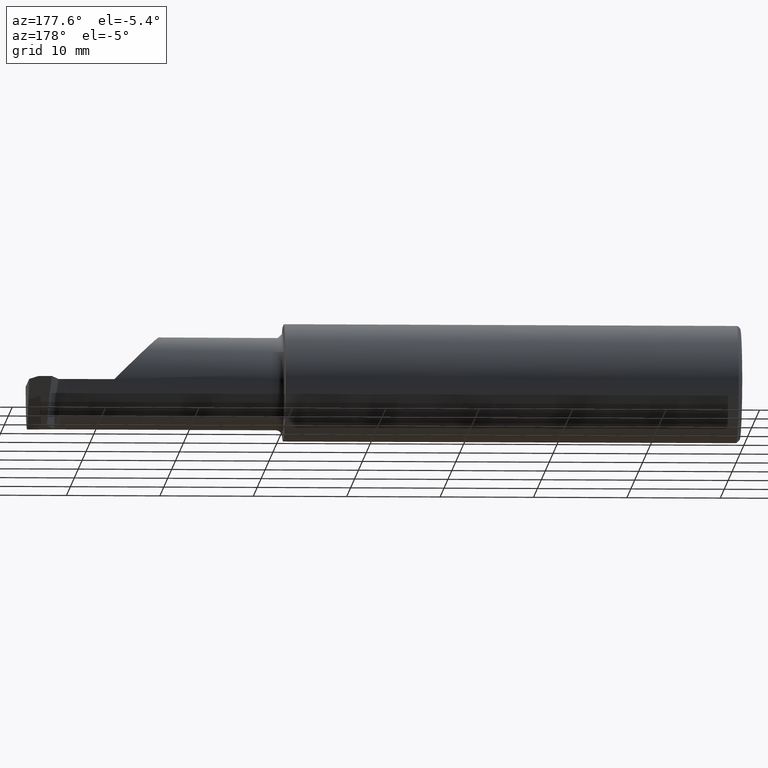
[diagram: clean part render]
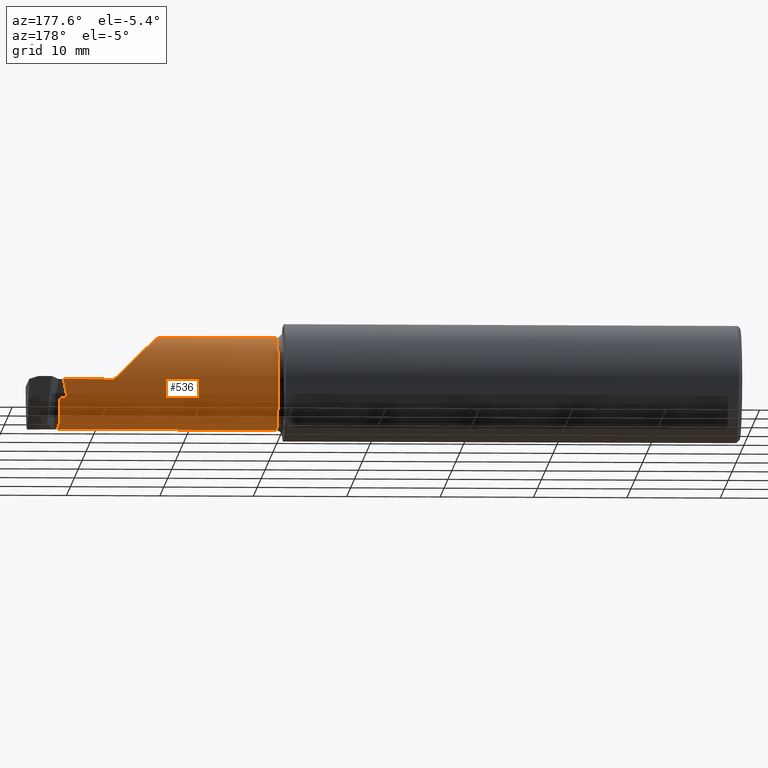
[diagram: same view with one face highlighted and labeled with its STEP entity id]
A machine part, auxiliary view. The second image highlights one B-rep face of the part: STEP entity #536.
In plain terms, the highlighted cylindrical surface (partial cylindrical patch) has radius 4.953 mm, axis along (-1, -0, -0).
Its self-contained STEP definition (entity closure, byte-faithful):
#16 = CARTESIAN_POINT ( 'NONE',  ( 1.925000000000000266, -0.08485000000000002263, 0.1950000000000000067 ) ) ;
#23 = CARTESIAN_POINT ( 'NONE',  ( 2.875000000000000444, -0.08485000000000002263, 0.000000000000000000 ) ) ;
#24 = VERTEX_POINT ( 'NONE', #963 ) ;
#30 = ORIENTED_EDGE ( 'NONE', *, *, #919, .T. ) ;
#34 = EDGE_CURVE ( 'NONE', #186, #483, #372, .T. ) ;
#36 = CARTESIAN_POINT ( 'NONE',  ( 2.869008559366363453, -0.03642100170329330006, -0.1888905294713771332 ) ) ;
#37 = DIRECTION ( 'NONE',  ( 0.000000000000000000, 0.000000000000000000, 1.000000000000000000 ) ) ;
#43 = ORIENTED_EDGE ( 'NONE', *, *, #380, .T. ) ;
#55 = DIRECTION ( 'NONE',  ( -2.801895378117193014E-15, 3.589928453212653217E-15, -1.000000000000000000 ) ) ;
#63 = VERTEX_POINT ( 'NONE', #364 ) ;
#67 = AXIS2_PLACEMENT_3D ( 'NONE', #282, #203, #746 ) ;
#99 = LINE ( 'NONE', #254, #861 ) ;
#126 = CARTESIAN_POINT ( 'NONE',  ( 2.640000000000000124, 0.1101499999999999563, -6.123031769111885058E-17 ) ) ;
#130 = CARTESIAN_POINT ( 'NONE',  ( 2.869008559366364786, -0.08485000000000002263, 0.000000000000000000 ) ) ;
#135 = EDGE_CURVE ( 'NONE', #192, #695, #153, .T. ) ;
#137 = FACE_OUTER_BOUND ( 'NONE', #421, .T. ) ;
#139 = VECTOR ( 'NONE', #869, 39.37007874015748143 ) ;
#142 = DIRECTION ( 'NONE',  ( -1.000000000000000000, -3.266703515499297450E-15, 3.893105650536435535E-15 ) ) ;
#143 = VECTOR ( 'NONE', #890, 39.37007874015748143 ) ;
#146 =( BOUNDED_CURVE ( )  B_SPLINE_CURVE ( 3, ( #307, #911, #229, #532 ),
 .UNSPECIFIED., .F., .F. ) 
 B_SPLINE_CURVE_WITH_KNOTS ( ( 4, 4 ),
 ( 4.719312112611640408, 6.283185307179586232 ),
 .UNSPECIFIED. ) 
 CURVE ( )  GEOMETRIC_REPRESENTATION_ITEM ( )  RATIONAL_B_SPLINE_CURVE ( ( 1.000000000000000000, 0.8063668244950932262, 0.8063668244950932262, 1.000000000000000000 ) ) 
 REPRESENTATION_ITEM ( '' )  );
#153 =( BOUNDED_CURVE ( )  B_SPLINE_CURVE ( 3, ( #240, #849, #620, #396 ),
 .UNSPECIFIED., .F., .F. ) 
 B_SPLINE_CURVE_WITH_KNOTS ( ( 4, 4 ),
 ( 1.156804228221840036, 1.570796326794896780 ),
 .UNSPECIFIED. ) 
 CURVE ( )  GEOMETRIC_REPRESENTATION_ITEM ( )  RATIONAL_B_SPLINE_CURVE ( ( 1.000000000000000000, 0.9857684695413670983, 0.9857684695413670983, 1.000000000000000000 ) ) 
 REPRESENTATION_ITEM ( '' )  );
#173 = CARTESIAN_POINT ( 'NONE',  ( 2.875000000000000444, -0.08485000000000002263, 0.000000000000000000 ) ) ;
#180 = DIRECTION ( 'NONE',  ( -1.000000000000000000, -0.000000000000000000, -0.000000000000000000 ) ) ;
#186 = VERTEX_POINT ( 'NONE', #537 ) ;
#192 = VERTEX_POINT ( 'NONE', #394 ) ;
#203 = DIRECTION ( 'NONE',  ( 1.000000000000000000, 0.000000000000000000, 0.000000000000000000 ) ) ;
#229 = CARTESIAN_POINT ( 'NONE',  ( 2.446349999999999802, 0.02875230614401349735, 0.1950000000000000344 ) ) ;
#234 = ORIENTED_EDGE ( 'NONE', *, *, #34, .T. ) ;
#240 = CARTESIAN_POINT ( 'NONE',  ( 2.839527195321073005, 0.09367683510634318422, -0.07844213884713081841 ) ) ;
#254 = CARTESIAN_POINT ( 'NONE',  ( 1.925000000000000266, 0.09276125059353615421, -0.08049374921445828779 ) ) ;
#262 = ORIENTED_EDGE ( 'NONE', *, *, #739, .F. ) ;
#265 = DIRECTION ( 'NONE',  ( 1.000000000000000000, 0.000000000000000000, 0.000000000000000000 ) ) ;
#270 = EDGE_CURVE ( 'NONE', #953, #63, #792, .T. ) ;
#272 = CARTESIAN_POINT ( 'NONE',  ( 1.925000000000000266, -0.08484999999999999487, -0.1950000000000000067 ) ) ;
#278 = CARTESIAN_POINT ( 'NONE',  ( 2.875000000000000444, -0.08485000000000003650, -0.1950000000000000067 ) ) ;
#282 = CARTESIAN_POINT ( 'NONE',  ( 1.950000000000000178, -0.08485000000000002263, 0.000000000000000000 ) ) ;
#300 = VERTEX_POINT ( 'NONE', #36 ) ;
#302 = CARTESIAN_POINT ( 'NONE',  ( 2.640000000000000124, -0.08485000000000002263, 0.000000000000000000 ) ) ;
#304 = CIRCLE ( 'NONE', #936, 0.1950000000000000067 ) ;
#307 = CARTESIAN_POINT ( 'NONE',  ( 2.640000000000000124, 0.1101453268670816443, 0.001349999999999153743 ) ) ;
#328 = ORIENTED_EDGE ( 'NONE', *, *, #270, .T. ) ;
#336 = VECTOR ( 'NONE', #265, 39.37007874015748143 ) ;
#345 = EDGE_CURVE ( 'NONE', #483, #695, #406, .T. ) ;
#354 = CARTESIAN_POINT ( 'NONE',  ( 1.950000000000000178, -0.08485000000000002263, 0.1950000000000000067 ) ) ;
#362 = CARTESIAN_POINT ( 'NONE',  ( 2.875000000000000444, 0.09276125059353650115, -0.08049374921445756614 ) ) ;
#364 = CARTESIAN_POINT ( 'NONE',  ( 1.950000000000000178, -0.08484999999999999487, -0.1950000000000000067 ) ) ;
#367 = CARTESIAN_POINT ( 'NONE',  ( 1.925000000000000266, -0.03642100170329384129, -0.1888905294713782990 ) ) ;
#372 = CIRCLE ( 'NONE', #699, 0.1950000000000000067 ) ;
#380 = EDGE_CURVE ( 'NONE', #877, #454, #99, .T. ) ;
#394 = CARTESIAN_POINT ( 'NONE',  ( 2.839527195321073005, 0.09367683510634318422, -0.07844213884713081841 ) ) ;
#396 = CARTESIAN_POINT ( 'NONE',  ( 2.856000360214729472, 0.1101499999999999563, 0.000000000000000000 ) ) ;
#404 = DIRECTION ( 'NONE',  ( -1.000000000000000000, -0.000000000000000000, -0.000000000000000000 ) ) ;
#405 = VERTEX_POINT ( 'NONE', #667 ) ;
#406 = LINE ( 'NONE', #708, #336 ) ;
#421 = EDGE_LOOP ( 'NONE', ( #698, #328, #786, #262, #431, #234, #470, #770, #621, #949, #43, #636, #30 ) ) ;
#431 = ORIENTED_EDGE ( 'NONE', *, *, #562, .F. ) ;
#439 = CYLINDRICAL_SURFACE ( 'NONE', #954, 0.1950000000000000067 ) ;
#447 = DIRECTION ( 'NONE',  ( 0.000000000000000000, 0.000000000000000000, 1.000000000000000000 ) ) ;
#449 = AXIS2_PLACEMENT_3D ( 'NONE', #130, #142, #55 ) ;
#454 = VERTEX_POINT ( 'NONE', #897 ) ;
#470 = ORIENTED_EDGE ( 'NONE', *, *, #345, .T. ) ;
#475 = AXIS2_PLACEMENT_3D ( 'NONE', #173, #560, #37 ) ;
#483 = VERTEX_POINT ( 'NONE', #126 ) ;
#512 = CIRCLE ( 'NONE', #449, 0.1950000000000000067 ) ;
#521 = DIRECTION ( 'NONE',  ( 1.000000000000000000, 0.000000000000000000, 0.000000000000000000 ) ) ;
#523 = EDGE_CURVE ( 'NONE', #454, #300, #512, .T. ) ;
#532 = CARTESIAN_POINT ( 'NONE',  ( 2.446350000000000691, -0.08485000000000002263, 0.1950000000000000067 ) ) ;
#536 = ADVANCED_FACE ( 'NONE', ( #137 ), #439, .T. ) ;
#537 = CARTESIAN_POINT ( 'NONE',  ( 2.640000000000000124, 0.1101453268670816443, 0.001349999999999153743 ) ) ;
#555 = CIRCLE ( 'NONE', #67, 0.1950000000000000067 ) ;
#558 = DIRECTION ( 'NONE',  ( -1.000000000000000000, -0.000000000000000000, -0.000000000000000000 ) ) ;
#560 = DIRECTION ( 'NONE',  ( -1.000000000000000000, -0.000000000000000000, -0.000000000000000000 ) ) ;
#562 = EDGE_CURVE ( 'NONE', #186, #867, #146, .T. ) ;
#563 = CARTESIAN_POINT ( 'NONE',  ( 2.446350000000000691, -0.08485000000000002263, 0.1950000000000000067 ) ) ;
#584 = CARTESIAN_POINT ( 'NONE',  ( 1.925000000000000044, 0.09367683510634167154, -0.07844213884713420459 ) ) ;
#609 = VERTEX_POINT ( 'NONE', #354 ) ;
#620 = CARTESIAN_POINT ( 'NONE',  ( 2.850308525664275727, 0.1101499999999999702, -0.02710345455678089474 ) ) ;
#621 = ORIENTED_EDGE ( 'NONE', *, *, #957, .F. ) ;
#636 = ORIENTED_EDGE ( 'NONE', *, *, #523, .T. ) ;
#638 = EDGE_CURVE ( 'NONE', #405, #953, #912, .T. ) ;
#646 = LINE ( 'NONE', #16, #766 ) ;
#665 = DIRECTION ( 'NONE',  ( -1.000000000000000000, -0.000000000000000000, -0.000000000000000000 ) ) ;
#667 = CARTESIAN_POINT ( 'NONE',  ( 2.875000000000000444, -0.03642100170329462538, -0.1888905294713785488 ) ) ;
#670 = LINE ( 'NONE', #367, #779 ) ;
#683 = EDGE_CURVE ( 'NONE', #24, #877, #304, .T. ) ;
#695 = VERTEX_POINT ( 'NONE', #934 ) ;
#698 = ORIENTED_EDGE ( 'NONE', *, *, #638, .T. ) ;
#699 = AXIS2_PLACEMENT_3D ( 'NONE', #302, #665, #447 ) ;
#708 = CARTESIAN_POINT ( 'NONE',  ( 1.925000000000000266, 0.1101499999999999840, -6.123031769111886291E-17 ) ) ;
#739 = EDGE_CURVE ( 'NONE', #867, #609, #646, .T. ) ;
#746 = DIRECTION ( 'NONE',  ( 0.000000000000000000, 0.000000000000000000, -1.000000000000000000 ) ) ;
#750 = DIRECTION ( 'NONE',  ( 0.000000000000000000, 0.000000000000000000, 1.000000000000000000 ) ) ;
#766 = VECTOR ( 'NONE', #404, 39.37007874015748143 ) ;
#770 = ORIENTED_EDGE ( 'NONE', *, *, #135, .F. ) ;
#779 = VECTOR ( 'NONE', #521, 39.37007874015748143 ) ;
#786 = ORIENTED_EDGE ( 'NONE', *, *, #961, .T. ) ;
#788 = DIRECTION ( 'NONE',  ( 0.000000000000000000, 0.000000000000000000, 1.000000000000000000 ) ) ;
#792 = LINE ( 'NONE', #272, #139 ) ;
#849 = CARTESIAN_POINT ( 'NONE',  ( 2.844738196388977070, 0.1045796707247017010, -0.05362832365497331027 ) ) ;
#861 = VECTOR ( 'NONE', #558, 39.37007874015748143 ) ;
#867 = VERTEX_POINT ( 'NONE', #563 ) ;
#869 = DIRECTION ( 'NONE',  ( -1.000000000000000000, -0.000000000000000000, -0.000000000000000000 ) ) ;
#877 = VERTEX_POINT ( 'NONE', #362 ) ;
#890 = DIRECTION ( 'NONE',  ( -1.000000000000000000, -0.000000000000000000, -0.000000000000000000 ) ) ;
#895 = LINE ( 'NONE', #584, #143 ) ;
#897 = CARTESIAN_POINT ( 'NONE',  ( 2.869008559366363453, 0.09276125059353612645, -0.08049374921445780207 ) ) ;
#902 = DIRECTION ( 'NONE',  ( -1.000000000000000000, -0.000000000000000000, -0.000000000000000000 ) ) ;
#911 = CARTESIAN_POINT ( 'NONE',  ( 2.526400416310738084, 0.1093588493630081732, 0.1149495836892616141 ) ) ;
#912 = CIRCLE ( 'NONE', #475, 0.1950000000000000067 ) ;
#919 = EDGE_CURVE ( 'NONE', #300, #405, #670, .T. ) ;
#934 = CARTESIAN_POINT ( 'NONE',  ( 2.856000360214729472, 0.1101499999999999563, 0.000000000000000000 ) ) ;
#936 = AXIS2_PLACEMENT_3D ( 'NONE', #23, #180, #788 ) ;
#949 = ORIENTED_EDGE ( 'NONE', *, *, #683, .T. ) ;
#953 = VERTEX_POINT ( 'NONE', #278 ) ;
#954 = AXIS2_PLACEMENT_3D ( 'NONE', #964, #902, #750 ) ;
#957 = EDGE_CURVE ( 'NONE', #24, #192, #895, .T. ) ;
#961 = EDGE_CURVE ( 'NONE', #63, #609, #555, .T. ) ;
#963 = CARTESIAN_POINT ( 'NONE',  ( 2.875000000000000444, 0.09367683510634322586, -0.07844213884713072127 ) ) ;
#964 = CARTESIAN_POINT ( 'NONE',  ( 1.925000000000000266, -0.08485000000000002263, 0.000000000000000000 ) ) ;